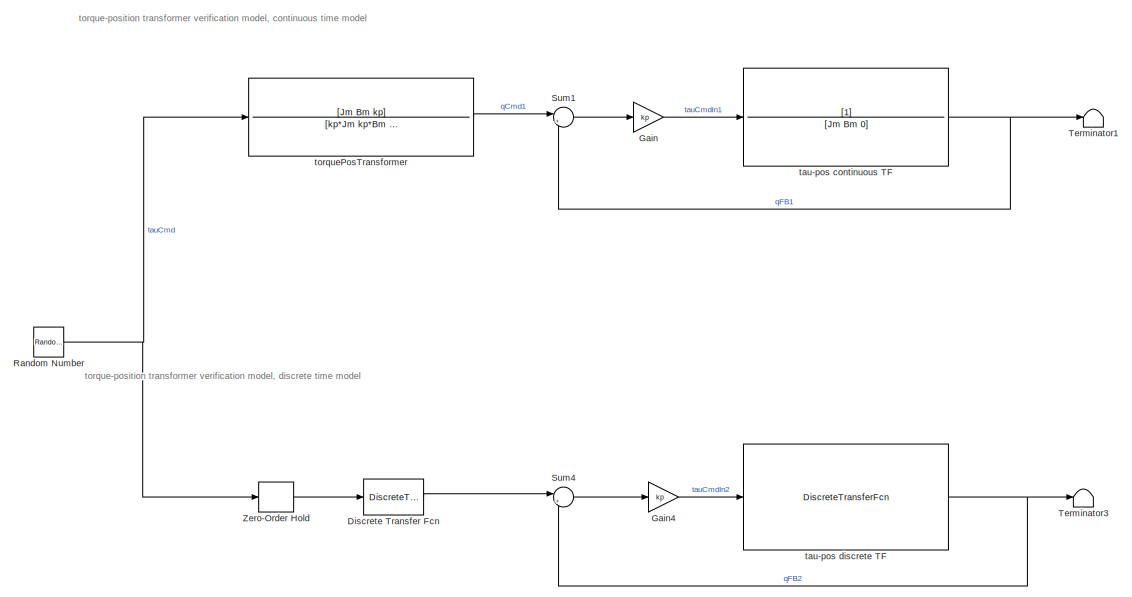
[diagram: root canvas - part 1/2, full width, top band]
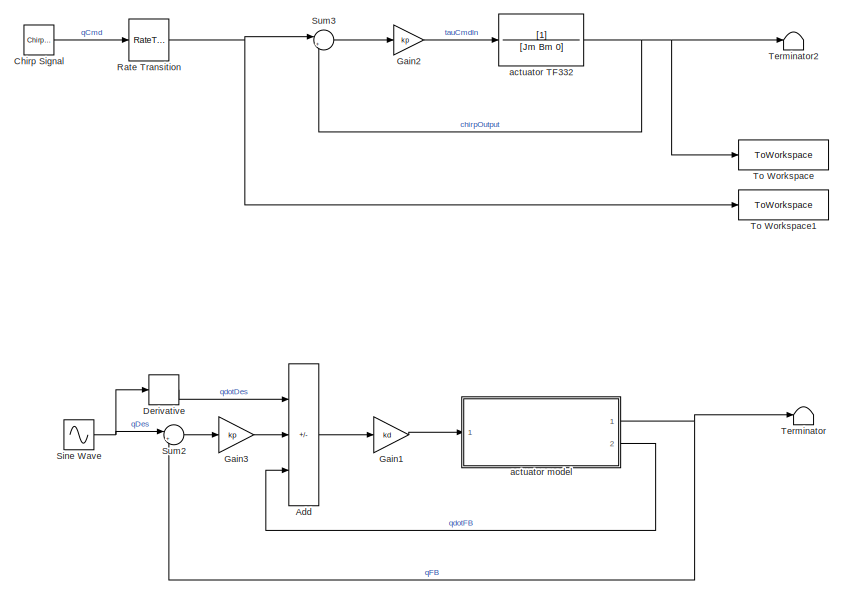
[diagram: root canvas - part 2/2, full width, bottom band]
MODEL slx_8dd5d3cdede9
KIND model
CONFIG AbsTol = auto
CONFIG EnableMultiTasking = off
CONFIG FixedStep = dt
CONFIG InitFcn = posInit1;
CONFIG MaxStep = auto
CONFIG MinStep = auto
CONFIG RelTol = 1e-3
CONFIG SampleTimeConstraint = Unconstrained
CONFIG SolverName = ode5
CONFIG StartTime = 0.0
CONFIG StopTime = runT
BLOCK [Sum] Add
  Commented = on
  IconShape = rectangular
  Inputs = ++-
  Ports = [3, 1]
BLOCK [Reference] Chirp Signal  REF=simulink/Sources/Chirp Signal
  Commented = on
  Ports = [0, 1]
  SourceBlock = simulink/Sources/Chirp Signal
  SourceProductBaseCode = SL
  SourceType = chirp
BLOCK [Derivative] Derivative
  Commented = on
BLOCK [DiscreteTransferFcn] Discrete Transfer Fcn
  Denominator = den2d
  InputPortMap = u0
  Numerator = num2d
  Ports = [1, 1]
  SampleTime = dt
BLOCK [Gain] Gain
  Gain = kp
BLOCK [Gain] Gain1
  Commented = on
  Gain = kd
BLOCK [Gain] Gain2
  Commented = on
  Gain = kp
BLOCK [Gain] Gain3
  Commented = on
  Gain = kp
BLOCK [Gain] Gain4
  Gain = kp
BLOCK [RandomNumber] Random Number
  SampleTime = 0.5
  Seed = 16
  Variance = 5
BLOCK [RateTransition] Rate Transition
  Commented = on
  OutPortSampleTime = 0.001
BLOCK [Sin] Sine Wave
  Commented = on
  Frequency = 2
  Ports = [0, 1]
  SampleTime = 0
BLOCK [Sum] Sum1
  Inputs = |+-
  Ports = [2, 1]
BLOCK [Sum] Sum2
  Commented = on
  Inputs = |+-
  Ports = [2, 1]
BLOCK [Sum] Sum3
  Commented = on
  Inputs = |+-
  Ports = [2, 1]
BLOCK [Sum] Sum4
  Inputs = |+-
  Ports = [2, 1]
BLOCK [Terminator] Terminator
  Commented = on
BLOCK [Terminator] Terminator1
BLOCK [Terminator] Terminator2
  Commented = on
BLOCK [Terminator] Terminator3
BLOCK [ToWorkspace] To Workspace
  Commented = on
  FixptAsFi = on
  MaxDataPoints = inf
  Ports = [1]
  SampleTime = -1
  SaveFormat = Timeseries
  VariableName = chirpOutput
BLOCK [ToWorkspace] To Workspace1
  Commented = on
  FixptAsFi = on
  MaxDataPoints = inf
  Ports = [1]
  SampleTime = -1
  SaveFormat = Timeseries
  VariableName = chirpInput
BLOCK [ZeroOrderHold] Zero-Order Hold
  SampleTime = dt
BLOCK [TransferFcn] actuator TF332
  Commented = on
  Denominator = [Jm Bm 0]
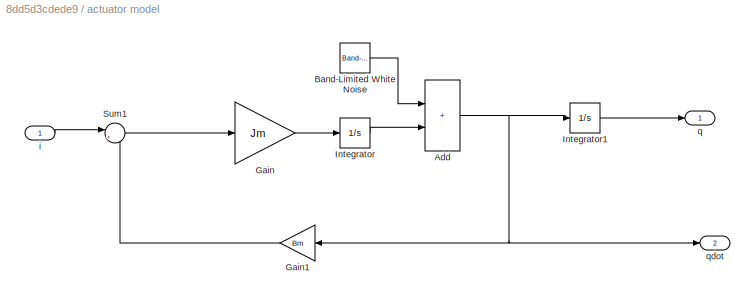
BLOCK [SubSystem] actuator model
  Commented = on
  Ports = [1, 2]
  RequestExecContextInheritance = off
BLOCK [Sum] actuator model/Add
  IconShape = rectangular
  Ports = [2, 1]
BLOCK [Reference] actuator model/Band-Limited White Noise  REF=simulink/Sources/Band-Limited
White Noise
  Ports = [0, 1]
  SourceBlock = simulink/Sources/Band-Limited\nWhite Noise
  SourceProductBaseCode = SL
  SourceType = Band-Limited White Noise.
BLOCK [Gain] actuator model/Gain
  Gain = Jm
BLOCK [Gain] actuator model/Gain1
  Gain = Bm
BLOCK [Integrator] actuator model/Integrator
  InitialCondition = qdot0
  Ports = [1, 1]
BLOCK [Integrator] actuator model/Integrator1
  InitialCondition = q0
  Ports = [1, 1]
BLOCK [Sum] actuator model/Sum1
  Inputs = |+-
  Ports = [2, 1]
BLOCK [Inport] actuator model/i
BLOCK [Outport] actuator model/q
BLOCK [Outport] actuator model/qdot
  Port = 2
BLOCK [TransferFcn] tau-pos continuous TF
  Denominator = [Jm Bm 0]
BLOCK [DiscreteTransferFcn] tau-pos discrete TF
  Denominator = den1d
  InputPortMap = u0
  Numerator = num1d
  Ports = [1, 1]
  SampleTime = dt
BLOCK [TransferFcn] torquePosTransformer
  Denominator = [kp*Jm kp*Bm 0]
  Numerator = [Jm Bm kp]
ANNOTATION (root): torque-position transformer verification model, continuous time model
ANNOTATION (root): torque-position transformer verification model, discrete time model
LINE Add:1 -> Gain1:1
LINE Chirp Signal:1 -> Rate Transition:1
LINE Derivative:1 -> Add:1
LINE Discrete Transfer Fcn:1 -> Sum4:1
LINE Gain1:1 -> actuator model:1
LINE Gain2:1 -> actuator TF332:1
LINE Gain3:1 -> Add:2
LINE Gain4:1 -> tau-pos discrete TF:1
LINE Gain:1 -> tau-pos continuous TF:1
NET Random Number:1 -> Zero-Order Hold:1, torquePosTransformer:1
NET Rate Transition:1 -> Sum3:1, To Workspace1:1
NET Sine Wave:1 -> Derivative:1, Sum2:1
LINE Sum1:1 -> Gain:1
LINE Sum2:1 -> Gain3:1
LINE Sum3:1 -> Gain2:1
LINE Sum4:1 -> Gain4:1
LINE Zero-Order Hold:1 -> Discrete Transfer Fcn:1
NET actuator TF332:1 -> Sum3:2, Terminator2:1, To Workspace:1
NET actuator model/Add:1 -> actuator model/Gain1:1, actuator model/Integrator1:1, actuator model/qdot:1
LINE actuator model/Band-Limited White Noise:1 -> actuator model/Add:1
LINE actuator model/Gain1:1 -> actuator model/Sum1:2
LINE actuator model/Gain:1 -> actuator model/Integrator:1
LINE actuator model/Integrator1:1 -> actuator model/q:1
LINE actuator model/Integrator:1 -> actuator model/Add:2
LINE actuator model/Sum1:1 -> actuator model/Gain:1
LINE actuator model/i:1 -> actuator model/Sum1:1
NET actuator model:1 -> Sum2:2, Terminator:1
LINE actuator model:2 -> Add:3
NET tau-pos continuous TF:1 -> Sum1:2, Terminator1:1
NET tau-pos discrete TF:1 -> Sum4:2, Terminator3:1
LINE torquePosTransformer:1 -> Sum1:1
note: NET lines group one-source signal fan-out (src -> all destinations, sorted); 1:1 wires keep LINE
